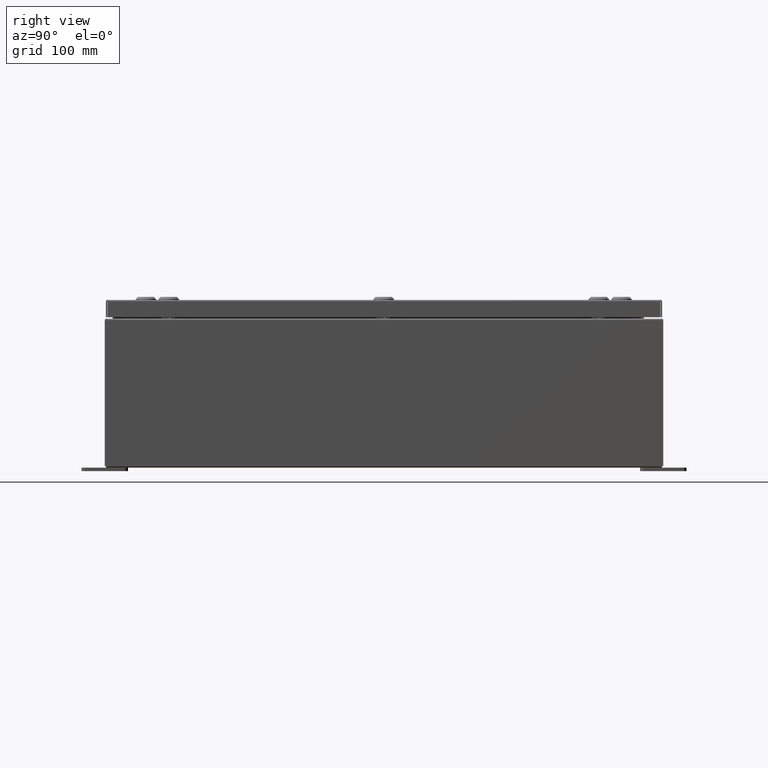
[diagram: clean part render]
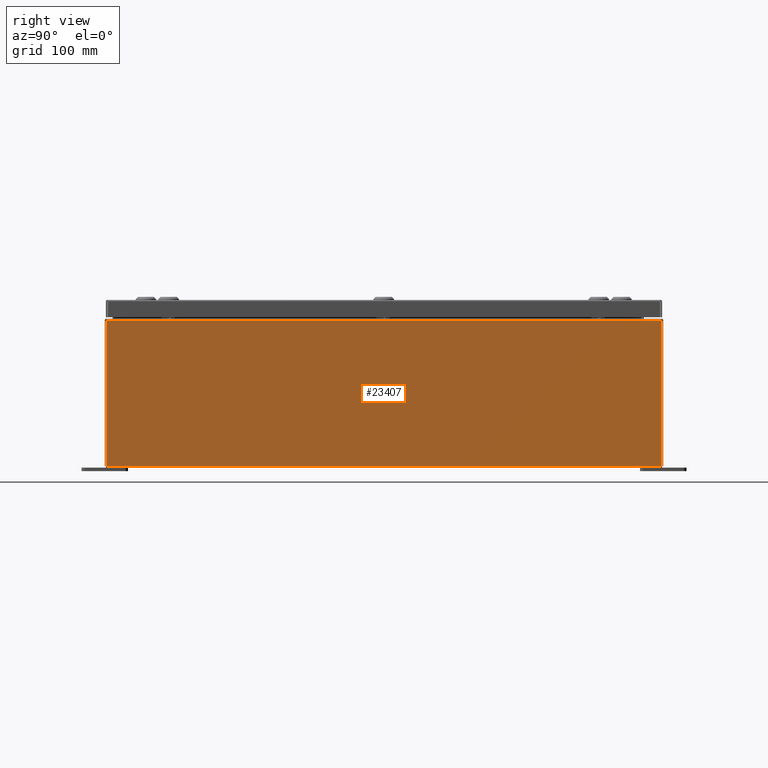
[diagram: same view with one face highlighted and labeled with its STEP entity id]
A machine part, right view. The second image highlights one B-rep face of the part: STEP entity #23407.
In plain terms, the highlighted planar face has unit normal (-1, 0, 0).
Its self-contained STEP definition (entity closure, byte-faithful):
#733 = VECTOR ( 'NONE', #1084, 39.37007874015748100 ) ;
#1084 = DIRECTION ( 'NONE',  ( -3.584876173029202900E-015, 0.0000000000000000000, -1.000000000000000000 ) ) ;
#1308 = VECTOR ( 'NONE', #51137, 39.37007874015748100 ) ;
#1472 = DIRECTION ( 'NONE',  ( 3.584876173029202900E-015, 0.0000000000000000000, 1.000000000000000000 ) ) ;
#5663 = CARTESIAN_POINT ( 'NONE',  ( 10.00000000000000000, -14.92529999999999600, 0.01299999999999983600 ) ) ;
#7953 = PLANE ( 'NONE',  #8040 ) ;
#8040 = AXIS2_PLACEMENT_3D ( 'NONE', #42591, #47562, #17874 ) ;
#16463 = CARTESIAN_POINT ( 'NONE',  ( 10.00000000000000000, -14.92529999999999600, 0.01299999999999984700 ) ) ;
#17874 = DIRECTION ( 'NONE',  ( 3.584876173029202900E-015, 0.0000000000000000000, 1.000000000000000000 ) ) ;
#18718 = VERTEX_POINT ( 'NONE', #60386 ) ;
#20439 = CARTESIAN_POINT ( 'NONE',  ( 10.00000000000002800, 14.92530000000000700, 7.837599999999992100 ) ) ;
#21192 = CARTESIAN_POINT ( 'NONE',  ( 10.00000000000000000, 14.92530000000000500, -3.610957538630361200E-014 ) ) ;
#23407 = ADVANCED_FACE ( 'NONE', ( #28702 ), #7953, .F. ) ;
#26441 = ORIENTED_EDGE ( 'NONE', *, *, #35521, .T. ) ;
#28702 = FACE_OUTER_BOUND ( 'NONE', #31767, .T. ) ;
#30764 = CARTESIAN_POINT ( 'NONE',  ( 10.00000000000000000, -14.92529999999999600, -3.610957538630361200E-014 ) ) ;
#31767 = EDGE_LOOP ( 'NONE', ( #43975, #46516, #52288, #26441 ) ) ;
#35521 = EDGE_CURVE ( 'NONE', #18718, #59668, #51319, .T. ) ;
#36610 = VECTOR ( 'NONE', #55092, 39.37007874015748100 ) ;
#38133 = VECTOR ( 'NONE', #1472, 39.37007874015748100 ) ;
#39281 = LINE ( 'NONE', #16463, #1308 ) ;
#41275 = LINE ( 'NONE', #20439, #36610 ) ;
#42591 = CARTESIAN_POINT ( 'NONE',  ( 10.00000000000000000, 0.0000000000000000000, -3.610957538630361200E-014 ) ) ;
#43975 = ORIENTED_EDGE ( 'NONE', *, *, #51571, .T. ) ;
#46516 = ORIENTED_EDGE ( 'NONE', *, *, #54799, .T. ) ;
#47562 = DIRECTION ( 'NONE',  ( -1.000000000000000000, 0.0000000000000000000, 3.584876173029202900E-015 ) ) ;
#50342 = LINE ( 'NONE', #30764, #733 ) ;
#51137 = DIRECTION ( 'NONE',  ( -0.0000000000000000000, -1.000000000000000000, -0.0000000000000000000 ) ) ;
#51319 = LINE ( 'NONE', #21192, #38133 ) ;
#51571 = EDGE_CURVE ( 'NONE', #59668, #52436, #41275, .T. ) ;
#52288 = ORIENTED_EDGE ( 'NONE', *, *, #58290, .F. ) ;
#52436 = VERTEX_POINT ( 'NONE', #56742 ) ;
#53945 = VERTEX_POINT ( 'NONE', #5663 ) ;
#54799 = EDGE_CURVE ( 'NONE', #52436, #53945, #50342, .T. ) ;
#55092 = DIRECTION ( 'NONE',  ( -0.0000000000000000000, -1.000000000000000000, -0.0000000000000000000 ) ) ;
#56742 = CARTESIAN_POINT ( 'NONE',  ( 10.00000000000002800, -14.92529999999999800, 7.837599999999998300 ) ) ;
#58290 = EDGE_CURVE ( 'NONE', #18718, #53945, #39281, .T. ) ;
#59668 = VERTEX_POINT ( 'NONE', #62575 ) ;
#60386 = CARTESIAN_POINT ( 'NONE',  ( 10.00000000000000000, 14.92530000000000500, 0.01299999999999984700 ) ) ;
#62575 = CARTESIAN_POINT ( 'NONE',  ( 10.00000000000002800, 14.92530000000000700, 7.837599999999992100 ) ) ;